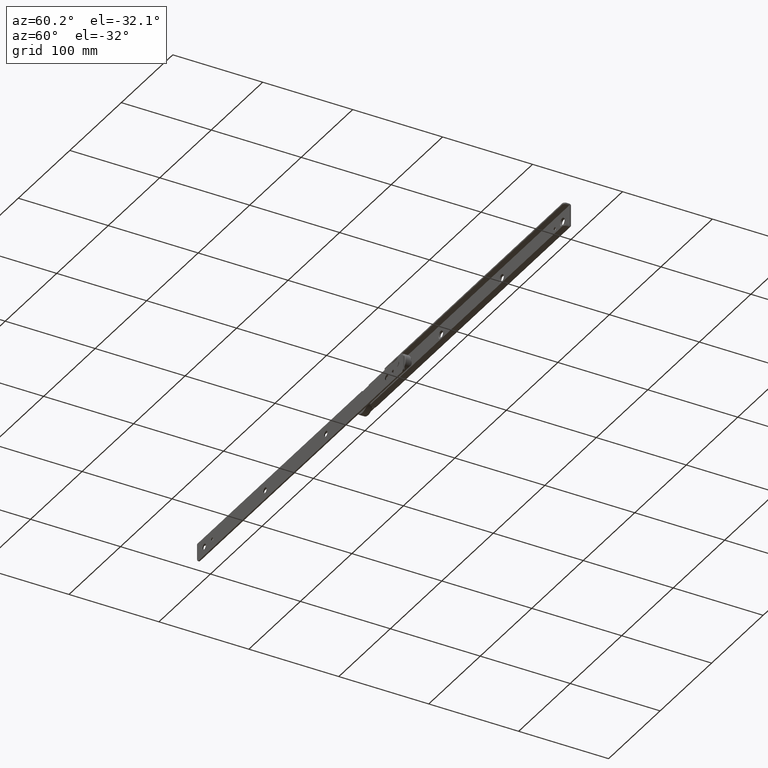
[diagram: clean part render]
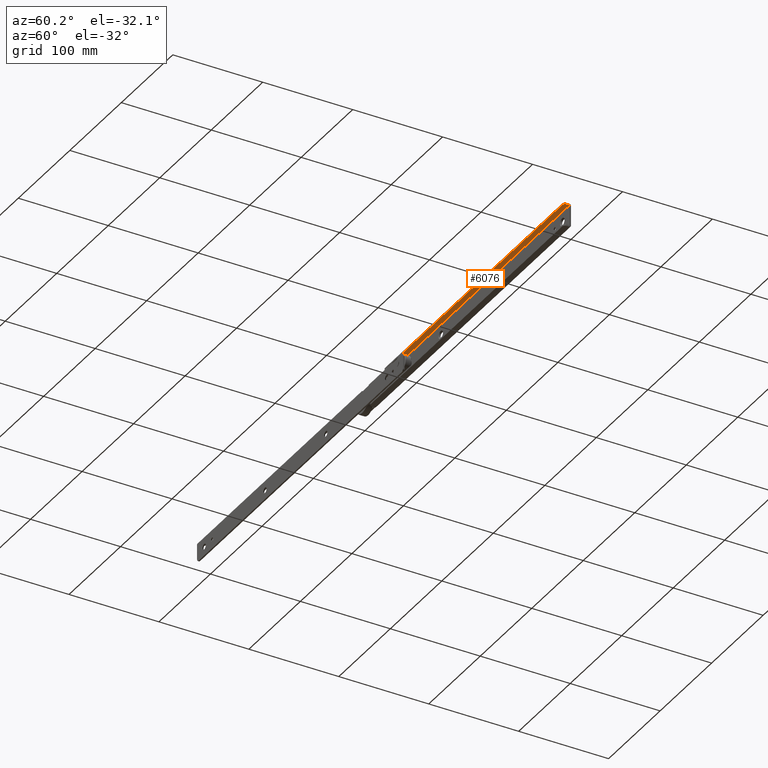
[diagram: same view with one face highlighted and labeled with its STEP entity id]
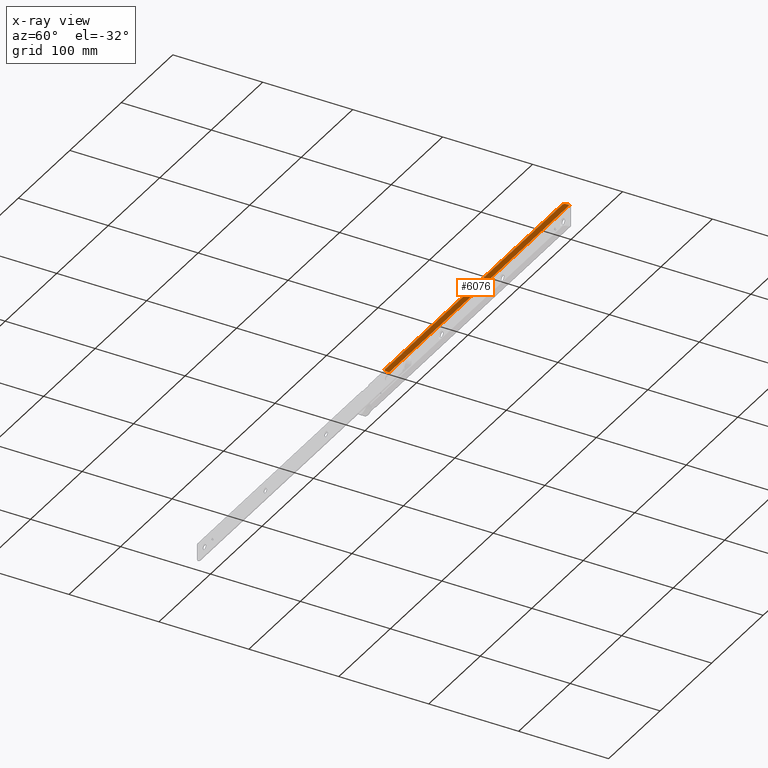
[diagram: x-ray of the same camera — body ghosted, the highlighted face saturated]
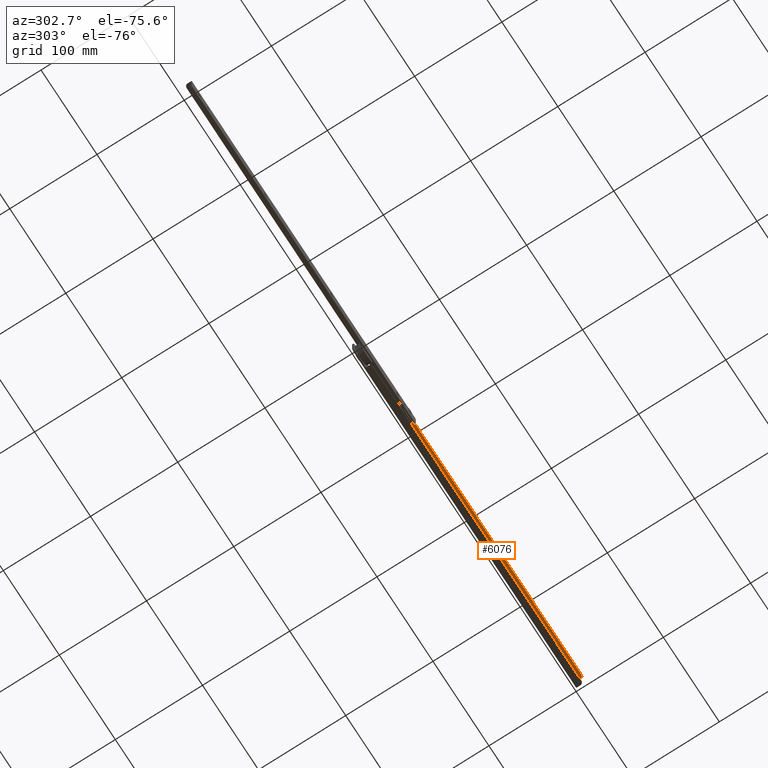
[diagram: same view with one face highlighted and labeled with its STEP entity id]
A machine part, auxiliary view. The second image highlights one B-rep face of the part: STEP entity #6076.
The next image is the same camera in x-ray: the body ghosted, the highlighted face saturated — about 0% of this face is hidden behind the body in this view.
A second angle (auxiliary view) of the same face is appended — the face is thin or edge-on in the first view.
In plain terms, the highlighted face is a freeform B-spline surface patch.
Its self-contained STEP definition (entity closure, byte-faithful):
#5268=CARTESIAN_POINT('',(50.0,-5.0,4.400000000000205));
#5269=VERTEX_POINT('',#5268);
#5275=CARTESIAN_POINT('',(53.0,-8.0,4.400000000000205));
#5276=VERTEX_POINT('',#5275);
#5277=CARTESIAN_POINT('',(53.0,-8.0,4.400000000000205));
#5278=CARTESIAN_POINT('',(49.999999999999986,-8.0,4.400000000000205));
#5279=CARTESIAN_POINT('',(49.999999999999993,-5.0,4.400000000000205));
#5287=(BOUNDED_CURVE()B_SPLINE_CURVE(2,(#5277,#5278,#5279),.UNSPECIFIED.,.F.,.U.)CURVE()GEOMETRIC_REPRESENTATION_ITEM()QUASI_UNIFORM_CURVE()RATIONAL_B_SPLINE_CURVE((1.0,0.707106781186548,1.0))REPRESENTATION_ITEM(''));
#5288=EDGE_CURVE('',#5276,#5269,#5287,.T.);
#5451=CARTESIAN_POINT('',(397.0,-8.0,4.400000000000205));
#5452=VERTEX_POINT('',#5451);
#5458=CARTESIAN_POINT('',(400.0,-5.0,4.400000000000205));
#5459=VERTEX_POINT('',#5458);
#5460=CARTESIAN_POINT('',(400.0,-5.0,4.400000000000205));
#5461=CARTESIAN_POINT('',(400.0,-8.0,4.400000000000205));
#5462=CARTESIAN_POINT('',(397.0,-8.0,4.400000000000205));
#5470=(BOUNDED_CURVE()B_SPLINE_CURVE(2,(#5460,#5461,#5462),.UNSPECIFIED.,.F.,.U.)CURVE()GEOMETRIC_REPRESENTATION_ITEM()QUASI_UNIFORM_CURVE()RATIONAL_B_SPLINE_CURVE((1.0,0.707106781186548,1.0))REPRESENTATION_ITEM(''));
#5471=EDGE_CURVE('',#5459,#5452,#5470,.T.);
#5618=CARTESIAN_POINT('',(50.0,-1.599999999999935,4.400000000000205));
#5619=VERTEX_POINT('',#5618);
#5638=CARTESIAN_POINT('',(50.0,-1.599999999999935,4.400000000000205));
#5639=CARTESIAN_POINT('',(50.0,-5.0,4.400000000000205));
#5640=QUASI_UNIFORM_CURVE('',1,(#5638,#5639),.UNSPECIFIED.,.F.,.U.);
#5641=EDGE_CURVE('',#5619,#5269,#5640,.T.);
#5764=CARTESIAN_POINT('',(400.0,-1.599999999999910,4.400000000000205));
#5765=VERTEX_POINT('',#5764);
#5766=CARTESIAN_POINT('',(400.0,-5.0,4.400000000000205));
#5767=CARTESIAN_POINT('',(400.0,-1.599999999999910,4.400000000000205));
#5768=QUASI_UNIFORM_CURVE('',1,(#5766,#5767),.UNSPECIFIED.,.F.,.U.);
#5769=EDGE_CURVE('',#5459,#5765,#5768,.T.);
#6007=CARTESIAN_POINT('',(400.0,-1.599999999999910,4.400000000000205));
#6008=CARTESIAN_POINT('',(50.0,-1.599999999999935,4.400000000000205));
#6009=QUASI_UNIFORM_CURVE('',1,(#6007,#6008),.UNSPECIFIED.,.F.,.U.);
#6010=EDGE_CURVE('',#5765,#5619,#6009,.T.);
#6059=CARTESIAN_POINT('',(32.517500678367938,-1.280320012404347,4.400000000000205));
#6060=CARTESIAN_POINT('',(32.517500678367938,-8.319680159256938,4.400000000000205));
#6061=CARTESIAN_POINT('',(417.482508709363570,-1.280320012404347,4.400000000000205));
#6062=CARTESIAN_POINT('',(417.482508709363570,-8.319680159256938,4.400000000000205));
#6063=B_SPLINE_SURFACE_WITH_KNOTS('',1,1,((#6059,#6061),(#6060,#6062)),.UNSPECIFIED.,.F.,.F.,.U.,(2,2),(2,2),(0.0,7.039360146852591),(0.0,384.965008030995700),.UNSPECIFIED.);
#6064=ORIENTED_EDGE('',*,*,#5769,.F.);
#6065=ORIENTED_EDGE('',*,*,#5471,.T.);
#6066=CARTESIAN_POINT('',(397.0,-8.0,4.400000000000205));
#6067=CARTESIAN_POINT('',(53.0,-8.0,4.400000000000205));
#6068=QUASI_UNIFORM_CURVE('',1,(#6066,#6067),.UNSPECIFIED.,.F.,.U.);
#6069=EDGE_CURVE('',#5452,#5276,#6068,.T.);
#6070=ORIENTED_EDGE('',*,*,#6069,.T.);
#6071=ORIENTED_EDGE('',*,*,#5288,.T.);
#6072=ORIENTED_EDGE('',*,*,#5641,.F.);
#6073=ORIENTED_EDGE('',*,*,#6010,.F.);
#6074=EDGE_LOOP('',(#6064,#6065,#6070,#6071,#6072,#6073));
#6075=FACE_OUTER_BOUND('',#6074,.T.);
#6076=ADVANCED_FACE('',(#6075),#6063,.F.);